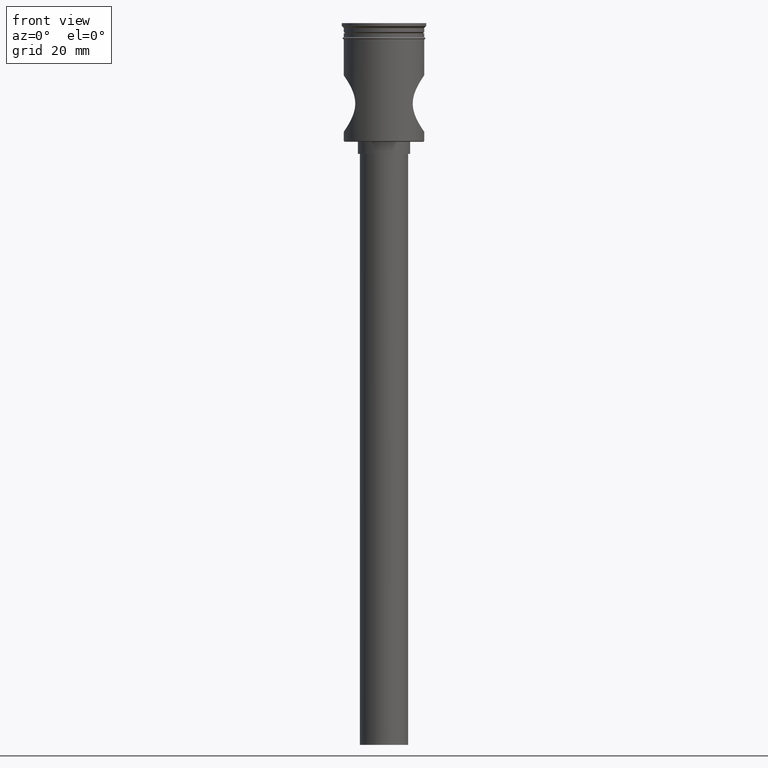
[diagram: clean part render]
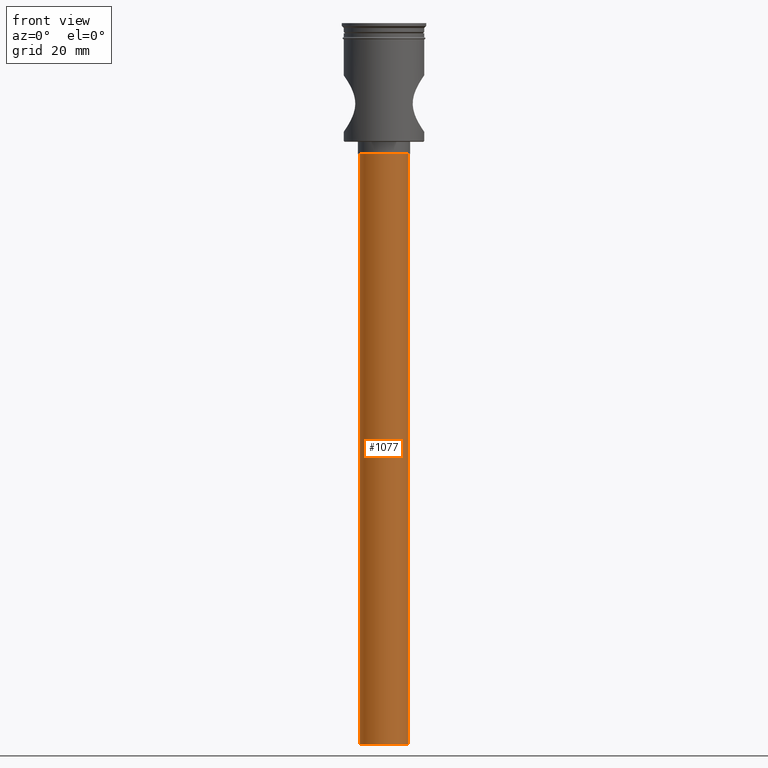
[diagram: same view with one face highlighted and labeled with its STEP entity id]
A machine part, front view. The second image highlights one B-rep face of the part: STEP entity #1077.
In plain terms, the highlighted cylindrical surface (edge-blend (fillet) strip) has radius 6 mm, axis along (-0, -0, 1).
Its self-contained STEP definition (entity closure, byte-faithful):
#22 = DIRECTION ( 'NONE',  ( 0.000000000000000000, 0.000000000000000000, -1.000000000000000000 ) ) ;
#97 = AXIS2_PLACEMENT_3D ( 'NONE', #626, #990, #371 ) ;
#139 = LINE ( 'NONE', #971, #869 ) ;
#172 = CARTESIAN_POINT ( 'NONE',  ( -6.000000000000000888, 7.347880794884120722E-16, -32.50000000000000000 ) ) ;
#197 = CIRCLE ( 'NONE', #1067, 6.000000000000000888 ) ;
#212 = LINE ( 'NONE', #569, #1074 ) ;
#229 = AXIS2_PLACEMENT_3D ( 'NONE', #301, #768, #1499 ) ;
#301 = CARTESIAN_POINT ( 'NONE',  ( 0.000000000000000000, 0.000000000000000000, -179.5000000000000000 ) ) ;
#371 = DIRECTION ( 'NONE',  ( 1.000000000000000000, 0.000000000000000000, 0.000000000000000000 ) ) ;
#452 = ORIENTED_EDGE ( 'NONE', *, *, #897, .F. ) ;
#484 = CYLINDRICAL_SURFACE ( 'NONE', #97, 6.000000000000000888 ) ;
#498 = CIRCLE ( 'NONE', #229, 6.000000000000000888 ) ;
#514 = ORIENTED_EDGE ( 'NONE', *, *, #1463, .T. ) ;
#527 = VERTEX_POINT ( 'NONE', #1083 ) ;
#569 = CARTESIAN_POINT ( 'NONE',  ( 6.000000000000000888, 0.000000000000000000, -179.5000000000000000 ) ) ;
#626 = CARTESIAN_POINT ( 'NONE',  ( 0.000000000000000000, 0.000000000000000000, -179.5000000000000000 ) ) ;
#630 = CARTESIAN_POINT ( 'NONE',  ( 6.000000000000000888, 0.000000000000000000, -179.5000000000000000 ) ) ;
#637 = EDGE_LOOP ( 'NONE', ( #452, #931, #514, #1080 ) ) ;
#672 = VERTEX_POINT ( 'NONE', #172 ) ;
#676 = VERTEX_POINT ( 'NONE', #754 ) ;
#744 = FACE_OUTER_BOUND ( 'NONE', #637, .T. ) ;
#754 = CARTESIAN_POINT ( 'NONE',  ( -6.000000000000000888, 7.347880794884120722E-16, -179.5000000000000000 ) ) ;
#768 = DIRECTION ( 'NONE',  ( 0.000000000000000000, 0.000000000000000000, -1.000000000000000000 ) ) ;
#862 = CARTESIAN_POINT ( 'NONE',  ( 0.000000000000000000, 0.000000000000000000, -32.50000000000000000 ) ) ;
#869 = VECTOR ( 'NONE', #1449, 1000.000000000000000 ) ;
#897 = EDGE_CURVE ( 'NONE', #676, #672, #139, .T. ) ;
#931 = ORIENTED_EDGE ( 'NONE', *, *, #1462, .F. ) ;
#971 = CARTESIAN_POINT ( 'NONE',  ( -6.000000000000000888, 7.347880794884120722E-16, -179.5000000000000000 ) ) ;
#976 = VERTEX_POINT ( 'NONE', #630 ) ;
#990 = DIRECTION ( 'NONE',  ( -0.000000000000000000, -0.000000000000000000, 1.000000000000000000 ) ) ;
#1065 = EDGE_CURVE ( 'NONE', #527, #672, #197, .T. ) ;
#1067 = AXIS2_PLACEMENT_3D ( 'NONE', #862, #22, #1335 ) ;
#1074 = VECTOR ( 'NONE', #1513, 1000.000000000000000 ) ;
#1077 = ADVANCED_FACE ( 'NONE', ( #744 ), #484, .T. ) ;
#1080 = ORIENTED_EDGE ( 'NONE', *, *, #1065, .T. ) ;
#1083 = CARTESIAN_POINT ( 'NONE',  ( 6.000000000000000888, 0.000000000000000000, -32.50000000000000000 ) ) ;
#1335 = DIRECTION ( 'NONE',  ( -1.000000000000000000, 0.000000000000000000, 0.000000000000000000 ) ) ;
#1449 = DIRECTION ( 'NONE',  ( -0.000000000000000000, -0.000000000000000000, 1.000000000000000000 ) ) ;
#1462 = EDGE_CURVE ( 'NONE', #976, #676, #498, .T. ) ;
#1463 = EDGE_CURVE ( 'NONE', #976, #527, #212, .T. ) ;
#1499 = DIRECTION ( 'NONE',  ( -1.000000000000000000, 0.000000000000000000, 0.000000000000000000 ) ) ;
#1513 = DIRECTION ( 'NONE',  ( -0.000000000000000000, -0.000000000000000000, 1.000000000000000000 ) ) ;